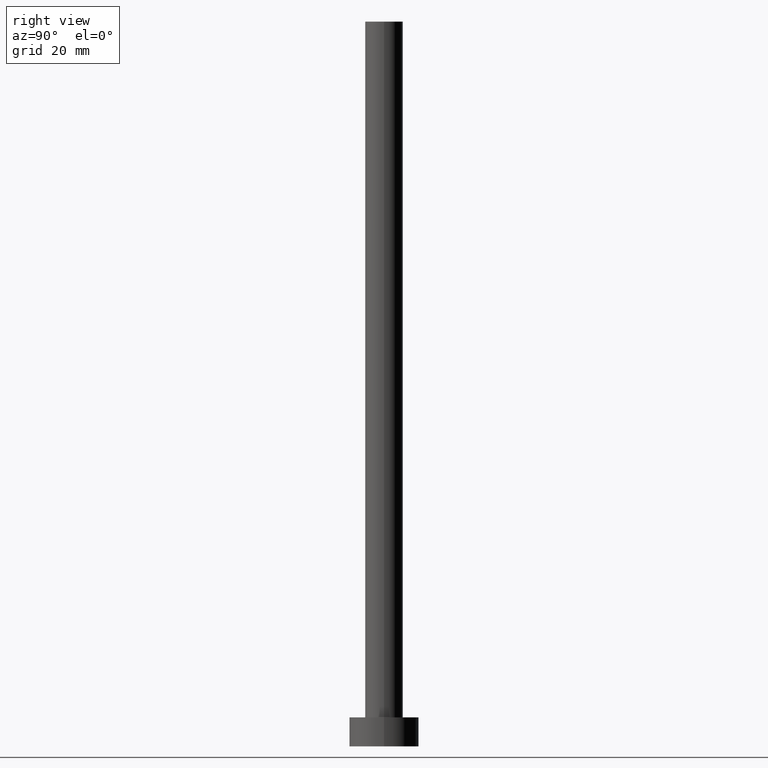
[diagram: clean part render]
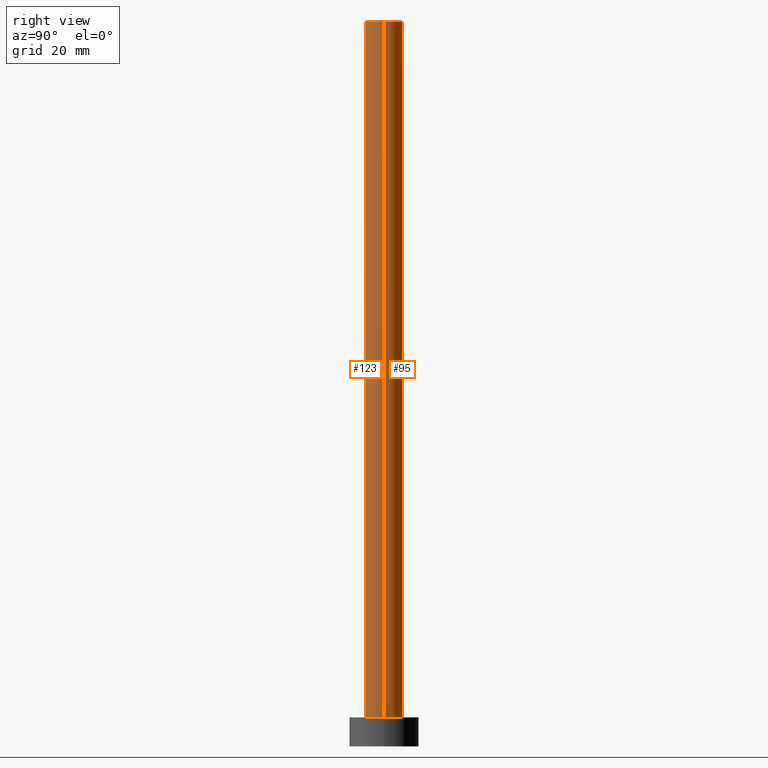
[diagram: same view with one multi-face feature highlighted, each face labeled with its STEP entity id]
A machine part, right view. The highlighted faces form ONE feature: a constant-radius fillet chain: 2 tangent blend faces with common blend radius 3.25 mm. The faces share edges in the B-rep.
Their STEP definitions:
[1] entity #95 (Cylinder):
#5 = AXIS2_PLACEMENT_3D ( 'NONE', #32, #105, #134 ) ;
#10 = AXIS2_PLACEMENT_3D ( 'NONE', #198, #138, #13 ) ;
#13 = DIRECTION ( 'NONE',  ( 1.000000000000000000, 0.000000000000000000, 0.000000000000000000 ) ) ;
#23 = ORIENTED_EDGE ( 'NONE', *, *, #193, .F. ) ;
#26 = EDGE_CURVE ( 'NONE', #120, #184, #118, .T. ) ;
#27 = ORIENTED_EDGE ( 'NONE', *, *, #41, .T. ) ;
#29 = CIRCLE ( 'NONE', #10, 3.250000000000000444 ) ;
#31 = LINE ( 'NONE', #225, #91 ) ;
#32 = CARTESIAN_POINT ( 'NONE',  ( 0.000000000000000000, 0.000000000000000000, 5.000000000000000000 ) ) ;
#41 = EDGE_CURVE ( 'NONE', #99, #120, #31, .T. ) ;
#58 = ORIENTED_EDGE ( 'NONE', *, *, #26, .T. ) ;
#76 = CARTESIAN_POINT ( 'NONE',  ( -3.250000000000000444, 0.000000000000000000, 125.0000000000000000 ) ) ;
#77 = CARTESIAN_POINT ( 'NONE',  ( -3.250000000000000444, 0.000000000000000000, 5.000000000000000000 ) ) ;
#87 = CARTESIAN_POINT ( 'NONE',  ( 3.250000000000000444, 3.980102097228898231E-16, 125.0000000000000000 ) ) ;
#89 = CARTESIAN_POINT ( 'NONE',  ( 3.250000000000000444, 3.980102097228898231E-16, 5.000000000000000000 ) ) ;
#91 = VECTOR ( 'NONE', #167, 1000.000000000000000 ) ;
#95 = ADVANCED_FACE ( 'NONE', ( #152 ), #109, .T. ) ;
#96 = DIRECTION ( 'NONE',  ( -0.000000000000000000, -0.000000000000000000, -1.000000000000000000 ) ) ;
#99 = VERTEX_POINT ( 'NONE', #87 ) ;
#105 = DIRECTION ( 'NONE',  ( 0.000000000000000000, 0.000000000000000000, 1.000000000000000000 ) ) ;
#109 = CYLINDRICAL_SURFACE ( 'NONE', #197, 3.250000000000000444 ) ;
#118 = CIRCLE ( 'NONE', #5, 3.250000000000000444 ) ;
#120 = VERTEX_POINT ( 'NONE', #89 ) ;
#134 = DIRECTION ( 'NONE',  ( 1.000000000000000000, 0.000000000000000000, 0.000000000000000000 ) ) ;
#136 = CARTESIAN_POINT ( 'NONE',  ( -3.250000000000000444, 0.000000000000000000, 125.0000000000000000 ) ) ;
#138 = DIRECTION ( 'NONE',  ( 0.000000000000000000, 0.000000000000000000, 1.000000000000000000 ) ) ;
#152 = FACE_OUTER_BOUND ( 'NONE', #202, .T. ) ;
#157 = VECTOR ( 'NONE', #96, 1000.000000000000000 ) ;
#166 = ORIENTED_EDGE ( 'NONE', *, *, #234, .F. ) ;
#167 = DIRECTION ( 'NONE',  ( -0.000000000000000000, -0.000000000000000000, -1.000000000000000000 ) ) ;
#172 = CARTESIAN_POINT ( 'NONE',  ( 0.000000000000000000, 0.000000000000000000, 125.0000000000000000 ) ) ;
#184 = VERTEX_POINT ( 'NONE', #77 ) ;
#190 = DIRECTION ( 'NONE',  ( -0.000000000000000000, -0.000000000000000000, -1.000000000000000000 ) ) ;
#193 = EDGE_CURVE ( 'NONE', #242, #184, #214, .T. ) ;
#197 = AXIS2_PLACEMENT_3D ( 'NONE', #172, #190, #207 ) ;
#198 = CARTESIAN_POINT ( 'NONE',  ( 0.000000000000000000, 0.000000000000000000, 125.0000000000000000 ) ) ;
#202 = EDGE_LOOP ( 'NONE', ( #166, #27, #58, #23 ) ) ;
#207 = DIRECTION ( 'NONE',  ( -1.000000000000000000, 0.000000000000000000, 0.000000000000000000 ) ) ;
#214 = LINE ( 'NONE', #76, #157 ) ;
#225 = CARTESIAN_POINT ( 'NONE',  ( 3.250000000000000444, 3.980102097228898231E-16, 125.0000000000000000 ) ) ;
#234 = EDGE_CURVE ( 'NONE', #99, #242, #29, .T. ) ;
#242 = VERTEX_POINT ( 'NONE', #136 ) ;
[2] entity #123 (Cylinder):
#7 = DIRECTION ( 'NONE',  ( 0.000000000000000000, 0.000000000000000000, 1.000000000000000000 ) ) ;
#11 = DIRECTION ( 'NONE',  ( 1.000000000000000000, 0.000000000000000000, 0.000000000000000000 ) ) ;
#31 = LINE ( 'NONE', #225, #91 ) ;
#37 = ORIENTED_EDGE ( 'NONE', *, *, #130, .T. ) ;
#41 = EDGE_CURVE ( 'NONE', #99, #120, #31, .T. ) ;
#49 = DIRECTION ( 'NONE',  ( -0.000000000000000000, -0.000000000000000000, -1.000000000000000000 ) ) ;
#50 = CARTESIAN_POINT ( 'NONE',  ( 0.000000000000000000, 0.000000000000000000, 125.0000000000000000 ) ) ;
#60 = ORIENTED_EDGE ( 'NONE', *, *, #193, .T. ) ;
#64 = DIRECTION ( 'NONE',  ( 1.000000000000000000, 0.000000000000000000, 0.000000000000000000 ) ) ;
#68 = AXIS2_PLACEMENT_3D ( 'NONE', #50, #49, #131 ) ;
#72 = EDGE_CURVE ( 'NONE', #242, #99, #97, .T. ) ;
#76 = CARTESIAN_POINT ( 'NONE',  ( -3.250000000000000444, 0.000000000000000000, 125.0000000000000000 ) ) ;
#77 = CARTESIAN_POINT ( 'NONE',  ( -3.250000000000000444, 0.000000000000000000, 5.000000000000000000 ) ) ;
#84 = ORIENTED_EDGE ( 'NONE', *, *, #72, .F. ) ;
#87 = CARTESIAN_POINT ( 'NONE',  ( 3.250000000000000444, 3.980102097228898231E-16, 125.0000000000000000 ) ) ;
#89 = CARTESIAN_POINT ( 'NONE',  ( 3.250000000000000444, 3.980102097228898231E-16, 5.000000000000000000 ) ) ;
#91 = VECTOR ( 'NONE', #167, 1000.000000000000000 ) ;
#96 = DIRECTION ( 'NONE',  ( -0.000000000000000000, -0.000000000000000000, -1.000000000000000000 ) ) ;
#97 = CIRCLE ( 'NONE', #111, 3.250000000000000444 ) ;
#99 = VERTEX_POINT ( 'NONE', #87 ) ;
#108 = CARTESIAN_POINT ( 'NONE',  ( 0.000000000000000000, 0.000000000000000000, 125.0000000000000000 ) ) ;
#111 = AXIS2_PLACEMENT_3D ( 'NONE', #108, #7, #64 ) ;
#120 = VERTEX_POINT ( 'NONE', #89 ) ;
#123 = ADVANCED_FACE ( 'NONE', ( #223 ), #245, .T. ) ;
#126 = ORIENTED_EDGE ( 'NONE', *, *, #41, .F. ) ;
#130 = EDGE_CURVE ( 'NONE', #184, #120, #229, .T. ) ;
#131 = DIRECTION ( 'NONE',  ( -1.000000000000000000, 0.000000000000000000, 0.000000000000000000 ) ) ;
#136 = CARTESIAN_POINT ( 'NONE',  ( -3.250000000000000444, 0.000000000000000000, 125.0000000000000000 ) ) ;
#140 = AXIS2_PLACEMENT_3D ( 'NONE', #194, #156, #11 ) ;
#156 = DIRECTION ( 'NONE',  ( 0.000000000000000000, 0.000000000000000000, 1.000000000000000000 ) ) ;
#157 = VECTOR ( 'NONE', #96, 1000.000000000000000 ) ;
#167 = DIRECTION ( 'NONE',  ( -0.000000000000000000, -0.000000000000000000, -1.000000000000000000 ) ) ;
#184 = VERTEX_POINT ( 'NONE', #77 ) ;
#193 = EDGE_CURVE ( 'NONE', #242, #184, #214, .T. ) ;
#194 = CARTESIAN_POINT ( 'NONE',  ( 0.000000000000000000, 0.000000000000000000, 5.000000000000000000 ) ) ;
#203 = EDGE_LOOP ( 'NONE', ( #126, #84, #60, #37 ) ) ;
#214 = LINE ( 'NONE', #76, #157 ) ;
#223 = FACE_OUTER_BOUND ( 'NONE', #203, .T. ) ;
#225 = CARTESIAN_POINT ( 'NONE',  ( 3.250000000000000444, 3.980102097228898231E-16, 125.0000000000000000 ) ) ;
#229 = CIRCLE ( 'NONE', #140, 3.250000000000000444 ) ;
#242 = VERTEX_POINT ( 'NONE', #136 ) ;
#245 = CYLINDRICAL_SURFACE ( 'NONE', #68, 3.250000000000000444 ) ;